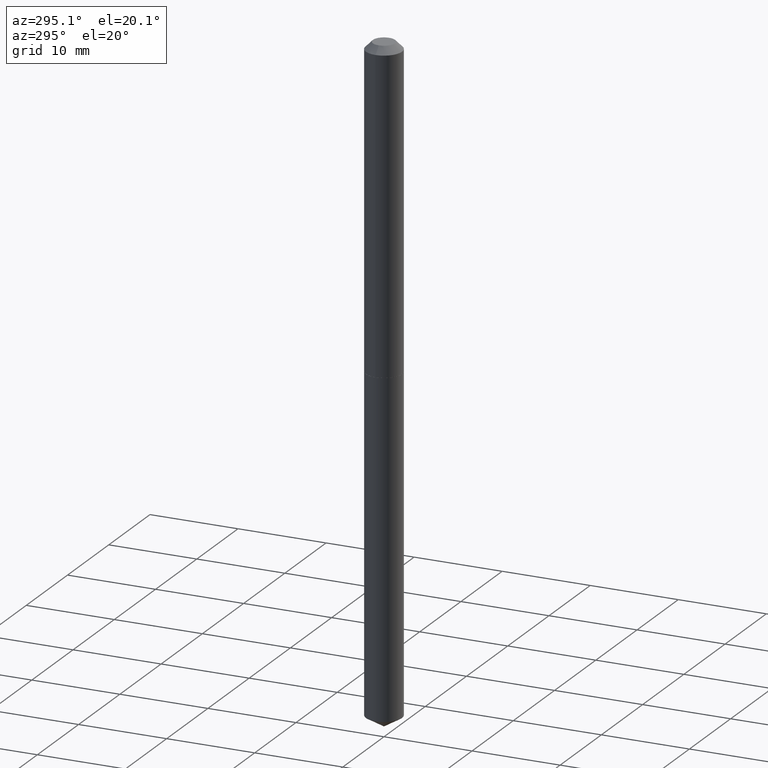
[diagram: clean part render]
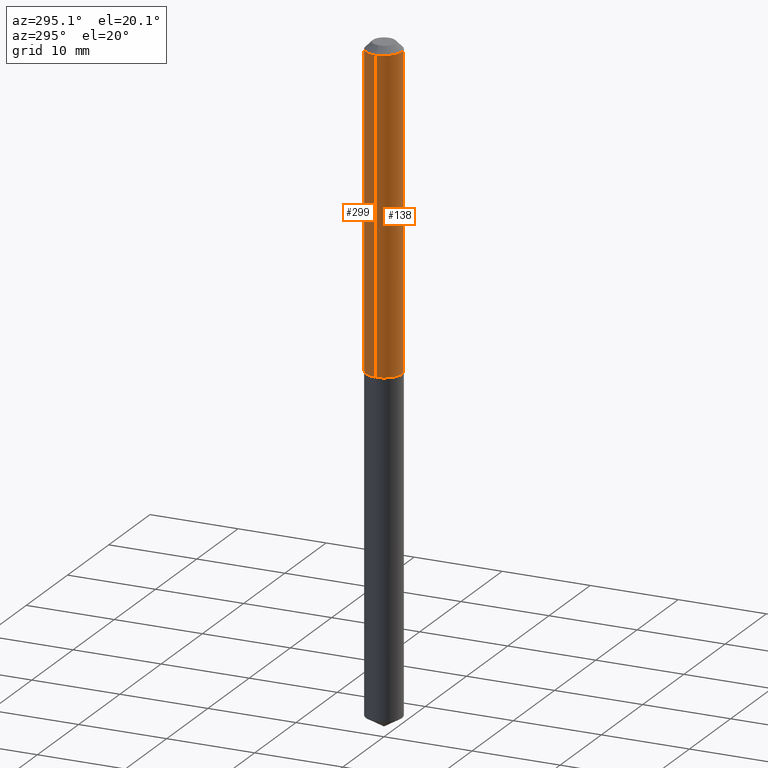
[diagram: same view with one multi-face feature highlighted, each face labeled with its STEP entity id]
A machine part, auxiliary view. The highlighted faces form ONE feature: a constant-radius fillet chain: 2 tangent blend faces with common blend radius 2.0498 mm. The faces share edges in the B-rep.
Their STEP definitions:
[1] entity #299 (Cylinder):
#11 = DIRECTION ( 'NONE',  ( -2.445468806185136877E-29, 3.491481338843145188E-15, 1.000000000000000000 ) ) ;
#13 = VECTOR ( 'NONE', #236, 39.37007874015748143 ) ;
#17 = EDGE_CURVE ( 'NONE', #239, #47, #288, .T. ) ;
#19 = VECTOR ( 'NONE', #11, 39.37007874015748143 ) ;
#38 = ORIENTED_EDGE ( 'NONE', *, *, #17, .T. ) ;
#41 = CARTESIAN_POINT ( 'NONE',  ( -0.08070000000000016049, -4.387288698469938583E-15, -1.420799999999999841 ) ) ;
#45 = DIRECTION ( 'NONE',  ( 1.000000000000000000, -6.982962677686266711E-15, 4.876176775795935793E-29 ) ) ;
#47 = VERTEX_POINT ( 'NONE', #41 ) ;
#69 = DIRECTION ( 'NONE',  ( 1.000000000000000000, -6.982962677686269077E-15, 0.000000000000000000 ) ) ;
#74 = EDGE_CURVE ( 'NONE', #103, #224, #286, .T. ) ;
#75 = CARTESIAN_POINT ( 'NONE',  ( 0.000000000000000000, 0.000000000000000000, 0.000000000000000000 ) ) ;
#88 = EDGE_CURVE ( 'NONE', #239, #103, #214, .T. ) ;
#96 = CARTESIAN_POINT ( 'NONE',  ( -0.08070000000000007723, 5.734079877584013987E-16, -3.969580617835712947E-30 ) ) ;
#103 = VERTEX_POINT ( 'NONE', #235 ) ;
#106 = ORIENTED_EDGE ( 'NONE', *, *, #211, .T. ) ;
#134 = CARTESIAN_POINT ( 'NONE',  ( 0.08070000000000016049, -5.524221774317623619E-15, -1.420799999999999841 ) ) ;
#160 = AXIS2_PLACEMENT_3D ( 'NONE', #351, #353, #340 ) ;
#165 = DIRECTION ( 'NONE',  ( -2.445468806185136597E-29, 3.491481338843145583E-15, 1.000000000000000000 ) ) ;
#206 = ORIENTED_EDGE ( 'NONE', *, *, #88, .F. ) ;
#211 = EDGE_CURVE ( 'NONE', #47, #224, #278, .T. ) ;
#214 = LINE ( 'NONE', #381, #13 ) ;
#224 = VERTEX_POINT ( 'NONE', #344 ) ;
#235 = CARTESIAN_POINT ( 'NONE',  ( 0.08069999999999999396, -6.726338799281306672E-16, -0.03125000000000020123 ) ) ;
#236 = DIRECTION ( 'NONE',  ( -2.445468806185136877E-29, 3.491481338843145188E-15, 1.000000000000000000 ) ) ;
#239 = VERTEX_POINT ( 'NONE', #134 ) ;
#246 = FACE_OUTER_BOUND ( 'NONE', #298, .T. ) ;
#278 = LINE ( 'NONE', #96, #19 ) ;
#283 = DIRECTION ( 'NONE',  ( -2.445468806185136597E-29, 3.491481338843145583E-15, 1.000000000000000000 ) ) ;
#286 = CIRCLE ( 'NONE', #160, 0.08069999999999999396 ) ;
#288 = CIRCLE ( 'NONE', #325, 0.08070000000000016049 ) ;
#293 = AXIS2_PLACEMENT_3D ( 'NONE', #75, #165, #45 ) ;
#298 = EDGE_LOOP ( 'NONE', ( #38, #106, #338, #206 ) ) ;
#299 = ADVANCED_FACE ( 'NONE', ( #246 ), #369, .T. ) ;
#325 = AXIS2_PLACEMENT_3D ( 'NONE', #349, #283, #69 ) ;
#338 = ORIENTED_EDGE ( 'NONE', *, *, #74, .F. ) ;
#340 = DIRECTION ( 'NONE',  ( 1.000000000000000000, -6.982962677686266711E-15, 0.000000000000000000 ) ) ;
#344 = CARTESIAN_POINT ( 'NONE',  ( -0.08069999999999999396, -1.961494751275192255E-15, -0.03125000000000020123 ) ) ;
#349 = CARTESIAN_POINT ( 'NONE',  ( 3.474522079827841687E-29, -4.960696686228340179E-15, -1.420799999999999841 ) ) ;
#351 = CARTESIAN_POINT ( 'NONE',  ( 7.642090019328601786E-31, -1.091087918388490144E-16, -0.03125000000000020123 ) ) ;
#353 = DIRECTION ( 'NONE',  ( -2.445468806185136597E-29, 3.491481338843145583E-15, 1.000000000000000000 ) ) ;
#369 = CYLINDRICAL_SURFACE ( 'NONE', #293, 0.08070000000000007723 ) ;
#381 = CARTESIAN_POINT ( 'NONE',  ( 0.08070000000000007723, -5.635250880892822568E-16, 3.935074658067323862E-30 ) ) ;
[2] entity #138 (Cylinder):
#9 = DIRECTION ( 'NONE',  ( 1.000000000000000000, -6.982962677686269077E-15, 0.000000000000000000 ) ) ;
#11 = DIRECTION ( 'NONE',  ( -2.445468806185136877E-29, 3.491481338843145188E-15, 1.000000000000000000 ) ) ;
#13 = VECTOR ( 'NONE', #236, 39.37007874015748143 ) ;
#19 = VECTOR ( 'NONE', #11, 39.37007874015748143 ) ;
#24 = CIRCLE ( 'NONE', #55, 0.08069999999999999396 ) ;
#39 = CARTESIAN_POINT ( 'NONE',  ( 7.642090019328601786E-31, -1.091087918388490144E-16, -0.03125000000000020123 ) ) ;
#41 = CARTESIAN_POINT ( 'NONE',  ( -0.08070000000000016049, -4.387288698469938583E-15, -1.420799999999999841 ) ) ;
#46 = DIRECTION ( 'NONE',  ( -2.445468806185136597E-29, 3.491481338843145583E-15, 1.000000000000000000 ) ) ;
#47 = VERTEX_POINT ( 'NONE', #41 ) ;
#55 = AXIS2_PLACEMENT_3D ( 'NONE', #39, #46, #109 ) ;
#76 = ORIENTED_EDGE ( 'NONE', *, *, #222, .T. ) ;
#88 = EDGE_CURVE ( 'NONE', #239, #103, #214, .T. ) ;
#96 = CARTESIAN_POINT ( 'NONE',  ( -0.08070000000000007723, 5.734079877584013987E-16, -3.969580617835712947E-30 ) ) ;
#103 = VERTEX_POINT ( 'NONE', #235 ) ;
#109 = DIRECTION ( 'NONE',  ( 1.000000000000000000, -6.982962677686266711E-15, 0.000000000000000000 ) ) ;
#123 = ORIENTED_EDGE ( 'NONE', *, *, #211, .F. ) ;
#128 = CYLINDRICAL_SURFACE ( 'NONE', #176, 0.08070000000000007723 ) ;
#133 = ORIENTED_EDGE ( 'NONE', *, *, #88, .T. ) ;
#134 = CARTESIAN_POINT ( 'NONE',  ( 0.08070000000000016049, -5.524221774317623619E-15, -1.420799999999999841 ) ) ;
#138 = ADVANCED_FACE ( 'NONE', ( #247 ), #128, .T. ) ;
#153 = DIRECTION ( 'NONE',  ( -2.445468806185136597E-29, 3.491481338843145583E-15, 1.000000000000000000 ) ) ;
#158 = CARTESIAN_POINT ( 'NONE',  ( 0.000000000000000000, 0.000000000000000000, 0.000000000000000000 ) ) ;
#163 = DIRECTION ( 'NONE',  ( -2.445468806185136597E-29, 3.491481338843145583E-15, 1.000000000000000000 ) ) ;
#176 = AXIS2_PLACEMENT_3D ( 'NONE', #158, #163, #245 ) ;
#211 = EDGE_CURVE ( 'NONE', #47, #224, #278, .T. ) ;
#214 = LINE ( 'NONE', #381, #13 ) ;
#219 = CARTESIAN_POINT ( 'NONE',  ( 3.474522079827841687E-29, -4.960696686228340179E-15, -1.420799999999999841 ) ) ;
#222 = EDGE_CURVE ( 'NONE', #47, #239, #241, .T. ) ;
#224 = VERTEX_POINT ( 'NONE', #344 ) ;
#232 = EDGE_LOOP ( 'NONE', ( #123, #76, #133, #312 ) ) ;
#235 = CARTESIAN_POINT ( 'NONE',  ( 0.08069999999999999396, -6.726338799281306672E-16, -0.03125000000000020123 ) ) ;
#236 = DIRECTION ( 'NONE',  ( -2.445468806185136877E-29, 3.491481338843145188E-15, 1.000000000000000000 ) ) ;
#239 = VERTEX_POINT ( 'NONE', #134 ) ;
#241 = CIRCLE ( 'NONE', #386, 0.08070000000000016049 ) ;
#245 = DIRECTION ( 'NONE',  ( 1.000000000000000000, -6.982962677686266711E-15, 4.876176775795935793E-29 ) ) ;
#247 = FACE_OUTER_BOUND ( 'NONE', #232, .T. ) ;
#278 = LINE ( 'NONE', #96, #19 ) ;
#312 = ORIENTED_EDGE ( 'NONE', *, *, #382, .F. ) ;
#344 = CARTESIAN_POINT ( 'NONE',  ( -0.08069999999999999396, -1.961494751275192255E-15, -0.03125000000000020123 ) ) ;
#381 = CARTESIAN_POINT ( 'NONE',  ( 0.08070000000000007723, -5.635250880892822568E-16, 3.935074658067323862E-30 ) ) ;
#382 = EDGE_CURVE ( 'NONE', #224, #103, #24, .T. ) ;
#386 = AXIS2_PLACEMENT_3D ( 'NONE', #219, #153, #9 ) ;